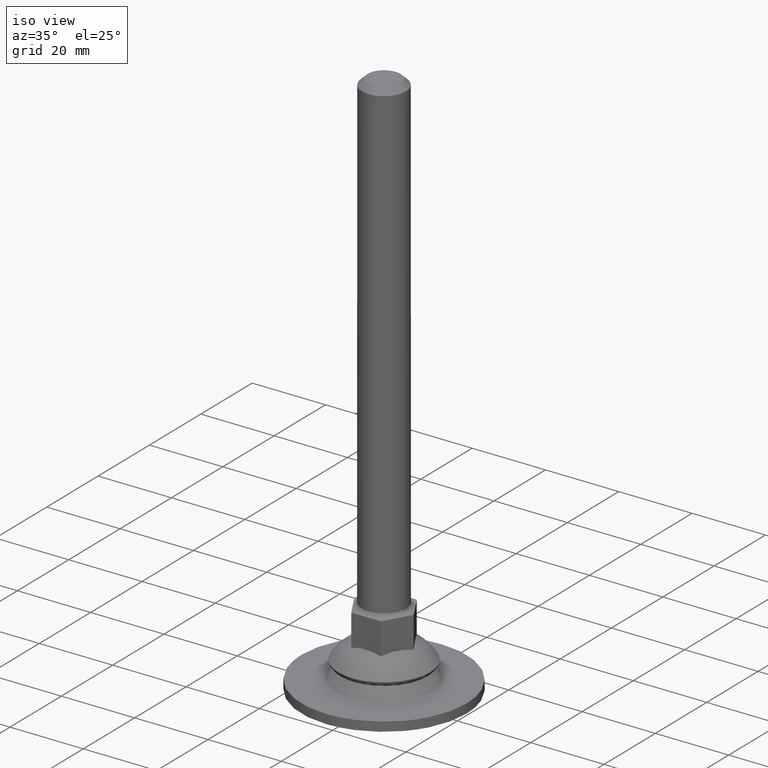
[diagram: clean part render]
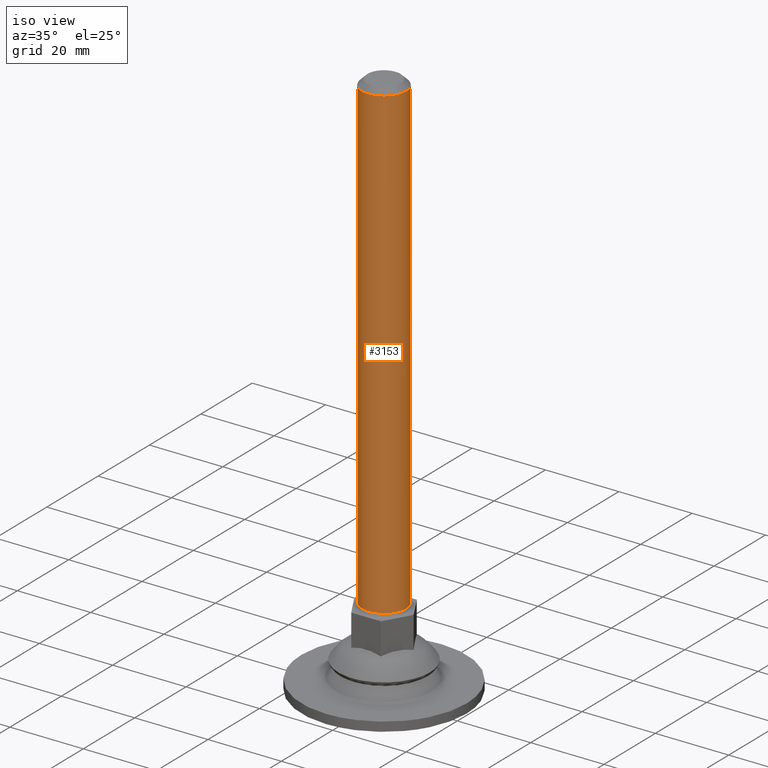
[diagram: same view with one face highlighted and labeled with its STEP entity id]
A machine part, iso view. The second image highlights one B-rep face of the part: STEP entity #3153.
In plain terms, the highlighted face is a freeform B-spline surface patch.
Its self-contained STEP definition (entity closure, byte-faithful):
#2920=CARTESIAN_POINT('',(4.279701110315870,4.205650487254646,148.999139774196810));
#2921=VERTEX_POINT('',#2920);
#2953=CARTESIAN_POINT('',(-4.279701110316093,-4.205650487254452,148.999139774196810));
#2954=VERTEX_POINT('',#2953);
#2992=CARTESIAN_POINT('',(-0.000001866477772,-5.999999999999710,149.0));
#2993=VERTEX_POINT('',#2992);
#2994=CARTESIAN_POINT('',(-0.000001866477772,-5.999999999999710,149.0));
#2995=CARTESIAN_POINT('',(-0.595648708011204,-6.000297839904614,148.999880274129990));
#2996=CARTESIAN_POINT('',(-1.513694813040996,-5.862185808818198,148.999695745536200));
#2997=CARTESIAN_POINT('',(-2.994475340023000,-5.273480503106065,148.999398106488090));
#2998=CARTESIAN_POINT('',(-3.810317496417754,-4.683952683098949,148.999234121007110));
#2999=CARTESIAN_POINT('',(-4.279701110316093,-4.205650487254452,148.999139774196810));
#3000=B_SPLINE_CURVE_WITH_KNOTS('',3,(#2994,#2995,#2996,#2997,#2998,#2999),.UNSPECIFIED.,.F.,.U.,(4,1,1,4),(0.000000048111027,1.786837366463164,2.754691756317994,4.764888141915506),.UNSPECIFIED.);
#3001=EDGE_CURVE('',#2993,#2954,#3000,.T.);
#3003=CARTESIAN_POINT('',(6.0,0.0,149.0));
#3004=VERTEX_POINT('',#3003);
#3005=CARTESIAN_POINT('',(6.0,0.0,149.0));
#3006=CARTESIAN_POINT('',(6.000123825381403,-0.490882255824777,149.000000000000110));
#3007=CARTESIAN_POINT('',(5.893950510471564,-1.349840612925911,148.999999999999890));
#3008=CARTESIAN_POINT('',(5.412605576019893,-2.722153463984689,148.999999999999890));
#3009=CARTESIAN_POINT('',(4.655007312424706,-3.886766797946696,149.000000000000510));
#3010=CARTESIAN_POINT('',(3.709277845339215,-4.754182740812536,148.999999999999090));
#3011=CARTESIAN_POINT('',(2.839801265377343,-5.312241428912699,149.000000000001790));
#3012=CARTESIAN_POINT('',(1.668749691477443,-5.831596188459503,148.999999999998690));
#3013=CARTESIAN_POINT('',(0.662729052391589,-6.000366306116209,149.000000000000600));
#3014=CARTESIAN_POINT('',(-0.000001866477772,-5.999999999999710,149.0));
#3015=B_SPLINE_CURVE_WITH_KNOTS('',3,(#3005,#3006,#3007,#3008,#3009,#3010,#3011,#3012,#3013,#3014),.UNSPECIFIED.,.F.,.U.,(4,1,1,1,1,1,1,4),(0.000000173306773,1.472626085643045,2.577108108385882,4.344289821163573,5.595961458184765,6.405939682238261,7.436796115826772,9.424838149247883),.UNSPECIFIED.);
#3016=EDGE_CURVE('',#3004,#2993,#3015,.T.);
#3018=CARTESIAN_POINT('',(4.279701110315870,4.205650487254646,148.999139774196810));
#3019=CARTESIAN_POINT('',(4.739282205981056,3.738429082551615,148.999235339890900));
#3020=CARTESIAN_POINT('',(5.389600535831377,2.812478057785171,148.999424734364910));
#3021=CARTESIAN_POINT('',(5.901564151663331,1.334913260229531,148.999726956191100));
#3022=CARTESIAN_POINT('',(6.000095429552792,0.436892329636440,148.999910637828690));
#3023=CARTESIAN_POINT('',(6.0,0.0,149.0));
#3024=B_SPLINE_CURVE_WITH_KNOTS('',3,(#3018,#3019,#3020,#3021,#3022,#3023),.UNSPECIFIED.,.F.,.U.,(4,1,1,4),(0.000000041792588,1.966009232949224,3.349491168674438,4.660165741488944),.UNSPECIFIED.);
#3025=EDGE_CURVE('',#2921,#3004,#3024,.T.);
#3058=CARTESIAN_POINT('',(4.108800387673703,4.372368020272979,21.499996469441729));
#3059=VERTEX_POINT('',#3058);
#3060=CARTESIAN_POINT('',(4.279701110315870,4.205650487254646,148.999139774196810));
#3061=CARTESIAN_POINT('',(4.108800387673703,4.372368020272979,21.499996469441729));
#3062=QUASI_UNIFORM_CURVE('',1,(#3060,#3061),.UNSPECIFIED.,.F.,.U.);
#3063=EDGE_CURVE('',#2921,#3059,#3062,.T.);
#3081=CARTESIAN_POINT('',(-4.108800387672050,-4.372368020271206,21.499998323520540));
#3082=VERTEX_POINT('',#3081);
#3091=CARTESIAN_POINT('',(-4.279701110316093,-4.205650487254452,148.999139774196810));
#3092=CARTESIAN_POINT('',(-4.108800387672050,-4.372368020271206,21.499998323520540));
#3093=QUASI_UNIFORM_CURVE('',1,(#3091,#3092),.UNSPECIFIED.,.F.,.U.);
#3094=EDGE_CURVE('',#2954,#3082,#3093,.T.);
#3099=CARTESIAN_POINT('',(4.046475110915110,4.430954289300867,152.187500104059810));
#3100=CARTESIAN_POINT('',(4.077549826644296,4.401752769655772,152.187500104059840));
#3101=CARTESIAN_POINT('',(8.481186919617953,0.263568652349489,152.187500104059810));
#3102=CARTESIAN_POINT('',(4.372377785983720,-4.108809133634231,152.187500104059810));
#3103=CARTESIAN_POINT('',(0.263568652349489,-8.481186919617953,152.187500104059810));
#3104=CARTESIAN_POINT('',(-4.225826865603576,-4.262413928913984,152.187500104059780));
#3105=CARTESIAN_POINT('',(-4.340278624654118,-4.154861366906454,152.187500104059860));
#3106=CARTESIAN_POINT('',(4.046475110915110,4.430954289300867,18.232808230948223));
#3107=CARTESIAN_POINT('',(4.077549826644296,4.401752769655772,18.232808230948216));
#3108=CARTESIAN_POINT('',(8.481186919617953,0.263568652349489,18.232808230948226));
#3109=CARTESIAN_POINT('',(4.372377785983720,-4.108809133634231,18.232808230948219));
#3110=CARTESIAN_POINT('',(0.263568652349489,-8.481186919617953,18.232808230948226));
#3111=CARTESIAN_POINT('',(-4.225826865603576,-4.262413928913984,18.232808230948226));
#3112=CARTESIAN_POINT('',(-4.340278624654118,-4.154861366906454,18.232808230948233));
#3120=(BOUNDED_SURFACE()B_SPLINE_SURFACE(2,1,((#3099,#3106),(#3100,#3107),(#3101,#3108),(#3102,#3109),(#3103,#3110),(#3104,#3111),(#3105,#3112)),.UNSPECIFIED.,.F.,.F.,.U.)B_SPLINE_SURFACE_WITH_KNOTS((3,1,2,1,3),(2,2),(0.0,0.100809210954740,10.041934707909020,19.983060204863300,20.363534955017290),(0.0,133.954691873111610),.UNSPECIFIED.)GEOMETRIC_REPRESENTATION_ITEM()RATIONAL_B_SPLINE_SURFACE(((1.005940239722680,1.005940239722680),(1.002970119861340,1.002970119861340),(0.707106781186548,0.707106781186548),(1.0,1.0),(0.707106781186548,0.707106781186548),(1.011209844829339,1.011209844829339),(1.022419689658678,1.022419689658678)))REPRESENTATION_ITEM('')SURFACE());
#3121=ORIENTED_EDGE('',*,*,#3001,.T.);
#3122=ORIENTED_EDGE('',*,*,#3094,.T.);
#3123=CARTESIAN_POINT('',(5.999526265240220,-0.075396239300335,21.499995837609472));
#3124=VERTEX_POINT('',#3123);
#3125=CARTESIAN_POINT('',(-4.108800387672050,-4.372368020271206,21.499998323520540));
#3126=CARTESIAN_POINT('',(-3.555806938471998,-4.891751940886786,21.499998200334701));
#3127=CARTESIAN_POINT('',(-2.219856348949927,-5.738490516765700,21.499997898750760));
#3128=CARTESIAN_POINT('',(0.029711704976952,-6.139232146273803,21.499997365357029));
#3129=CARTESIAN_POINT('',(1.720259271563827,-5.805556812461462,21.499996931593579));
#3130=CARTESIAN_POINT('',(2.975982612443153,-5.245577353992985,21.499996615822131));
#3131=CARTESIAN_POINT('',(3.730695649121499,-4.738135640545804,21.499996412412042));
#3132=CARTESIAN_POINT('',(4.410893339428557,-4.088315727320824,21.499996237731679));
#3133=CARTESIAN_POINT('',(5.261702974594830,-3.053373177663872,21.499996023896859));
#3134=CARTESIAN_POINT('',(5.864762877821204,-1.663308732178548,21.499995842061811));
#3135=CARTESIAN_POINT('',(5.994986495841509,-0.436673072061907,21.499995827608242));
#3136=CARTESIAN_POINT('',(5.999526265240220,-0.075396239300335,21.499995837609472));
#3137=B_SPLINE_CURVE_WITH_KNOTS('',3,(#3125,#3126,#3127,#3128,#3129,#3130,#3131,#3132,#3133,#3134,#3135,#3136),.UNSPECIFIED.,.F.,.U.,(4,1,1,1,1,1,1,1,1,4),(-0.000022542837945,2.276143514900385,4.660703072725330,6.720089487893112,7.370423531868789,8.779482805192691,9.429815700176288,10.188535213227739,12.789862035417920,13.873751490190520),.UNSPECIFIED.);
#3138=EDGE_CURVE('',#3082,#3124,#3137,.T.);
#3139=ORIENTED_EDGE('',*,*,#3138,.T.);
#3140=CARTESIAN_POINT('',(5.999526265240220,-0.075396239300335,21.499995837609472));
#3141=CARTESIAN_POINT('',(6.010051818581107,0.753533701478473,21.499995878551829));
#3142=CARTESIAN_POINT('',(5.682006747171435,2.415371881239202,21.499996054511950));
#3143=CARTESIAN_POINT('',(4.713116441664722,3.804871515440819,21.499996316388859));
#3144=CARTESIAN_POINT('',(4.108800387673703,4.372368020272979,21.499996469441729));
#3145=B_SPLINE_CURVE_WITH_KNOTS('',3,(#3140,#3141,#3142,#3143,#3144),.UNSPECIFIED.,.F.,.U.,(4,1,4),(-0.000001556525942,2.487026306257525,4.974053886722044),.UNSPECIFIED.);
#3146=EDGE_CURVE('',#3124,#3059,#3145,.T.);
#3147=ORIENTED_EDGE('',*,*,#3146,.T.);
#3148=ORIENTED_EDGE('',*,*,#3063,.F.);
#3149=ORIENTED_EDGE('',*,*,#3025,.T.);
#3150=ORIENTED_EDGE('',*,*,#3016,.T.);
#3151=EDGE_LOOP('',(#3121,#3122,#3139,#3147,#3148,#3149,#3150));
#3152=FACE_OUTER_BOUND('',#3151,.T.);
#3153=ADVANCED_FACE('',(#3152),#3120,.T.);